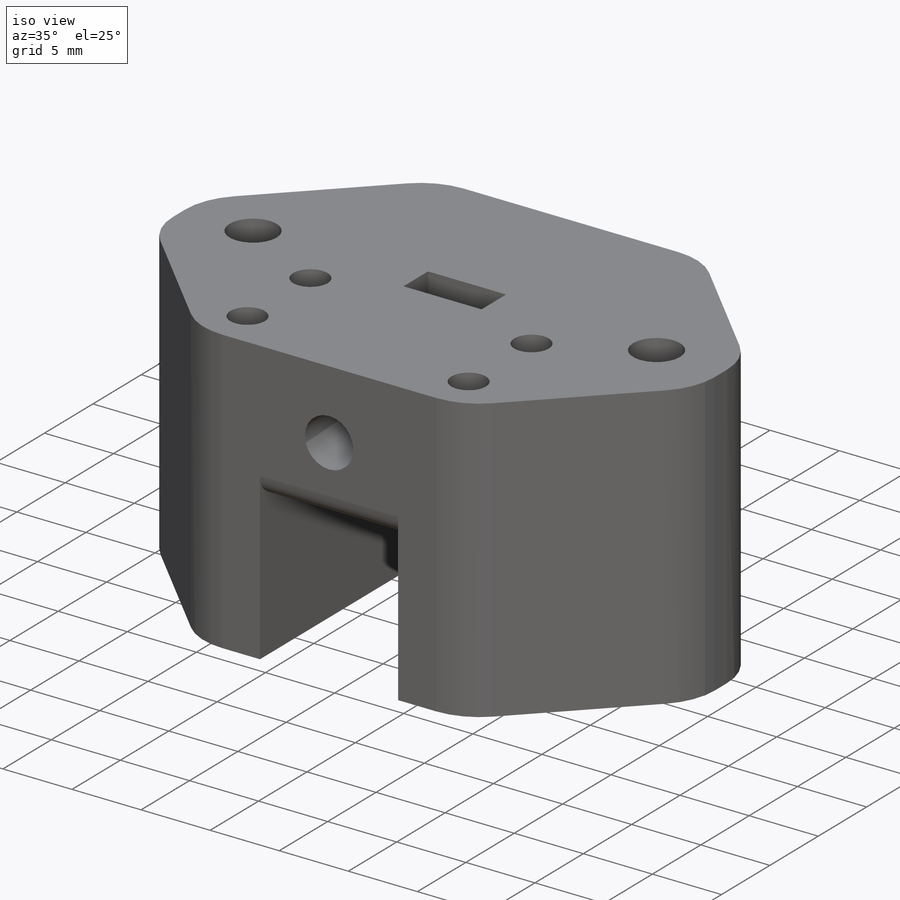
[diagram: iso view]
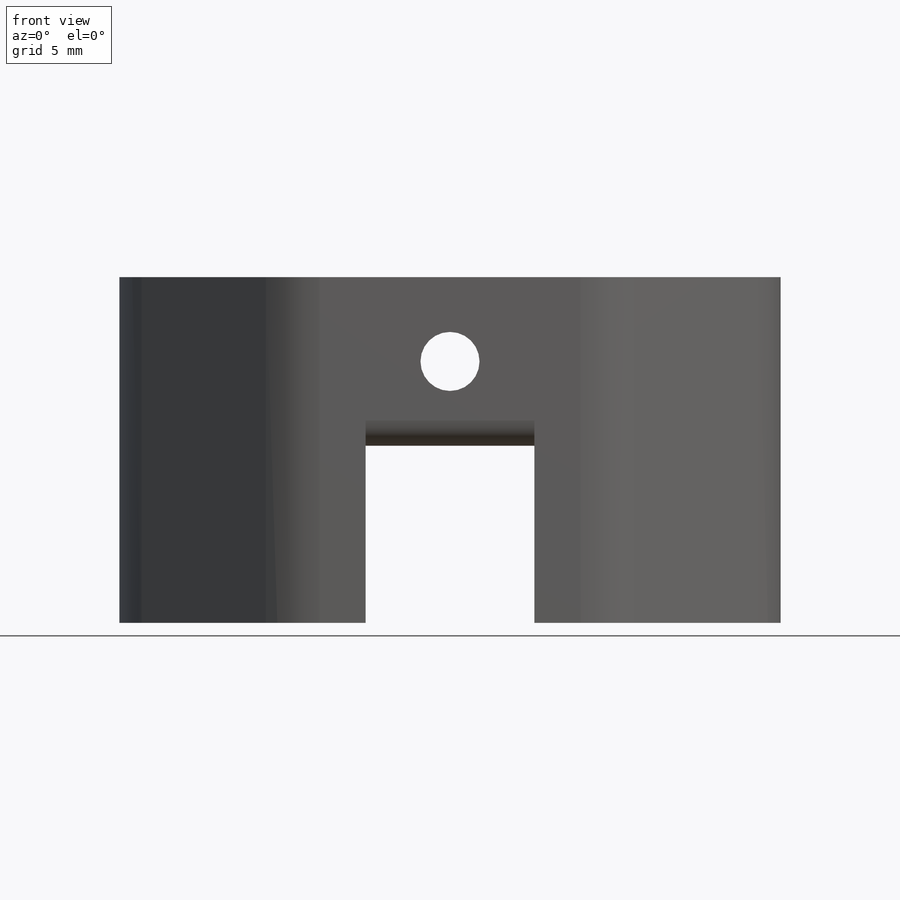
[diagram: front view]
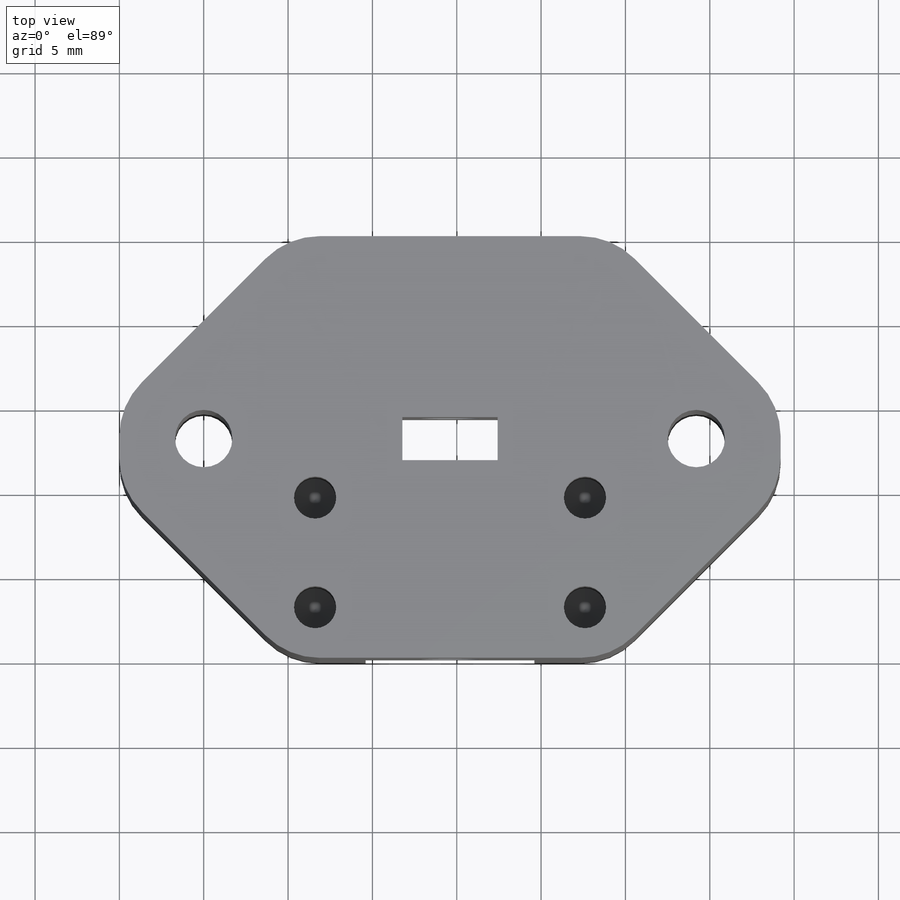
[diagram: top view]
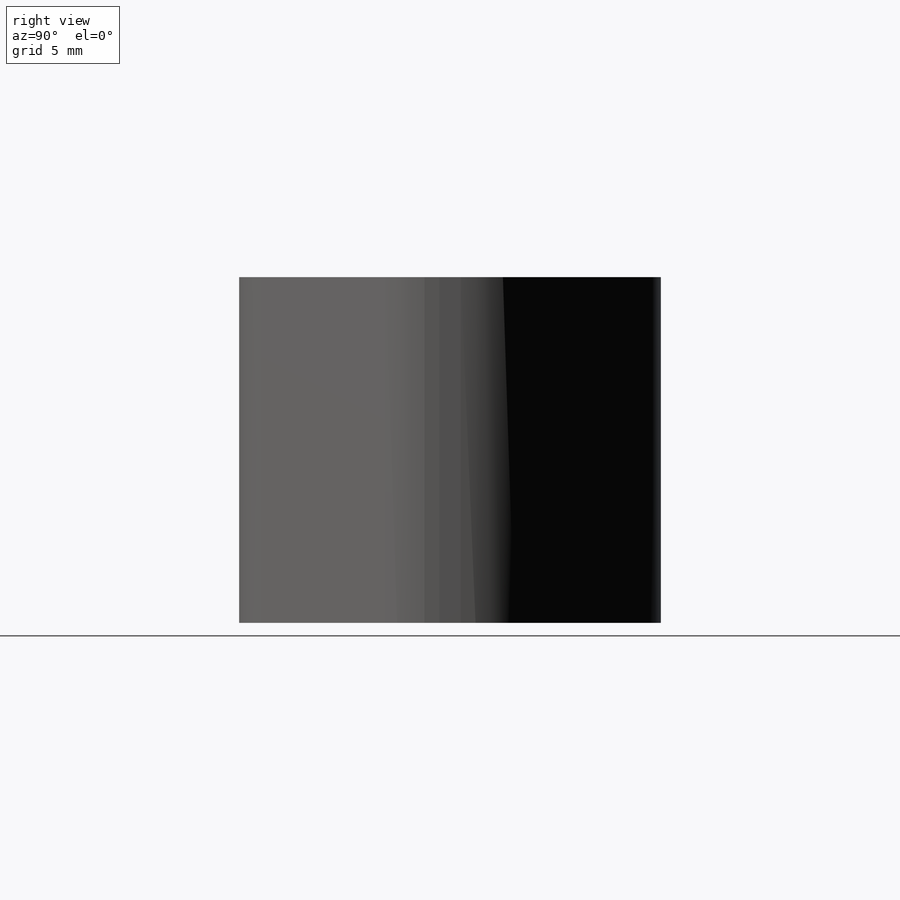
[diagram: right view]
SOLIDWORKS PART (.sldprt)
format: sldprt  version: not decoded by parser v0  size: 406,528 bytes
history: native  units: mm
features: sketch x11, hole x4, extrude x2, fillet x2, material x1, cut_extrude x1, chamfer x1 (+11 scaffold rows collapsed)
feature tree (33):
  scaffold x11  (default folders/planes/origin — collapsed)
  material  "ABS PC"
  sketch  "Sketch1"  dims[D1=39.2mm D2=25.0mm]
  extrude  "Boss-Extrude1"  Depth=10mm
  hole  "Ø3.5 (3.5) Diameter Hole1"  Diameter=3.5mm Depth=25mm
  sketch  "Sketch8"  dims[c1.D1=9.6mm c1.D2=3.0mm c2.D1=19.6mm c2.D2=5.0mm]
  sketch  "Sketch7"  dims[hole-wizard template sketch: 60 standard entries collapsed; hole parameters kept: c18.Thru Hole Depth=25.0mm]
  sketch  "Sketch9"  dims[D1=10.0mm D2=14.6mm]
  extrude  "Boss-Extrude2"  Depth=10.5mm
  sketch  "Sketch10"  dims[D1=5.65mm D2=2.55mm D3=16.775mm D4=10.73mm]
  cut_extrude  "Cut-Extrude4"  Depth=10mm
  hole  "Ø2.5 (2.5) Diameter Hole1"  Diameter=2.5mm Depth=7mm
  sketch  "Sketch12"  dims[D1=3.0mm D2=6.5mm D3=16.0mm D4=11.6mm]
  sketch  "Sketch11"  dims[hole-wizard template sketch: 50 standard entries collapsed; hole parameters above]
  hole  "Ø3.4 (3.4) Diameter Hole1"  Diameter=3.4mm Depth=20.500025mm
  sketch  "Sketch3"  dims[D1=5.0mm D2=5.0mm D3=7.0mm D4=12.0mm]
  sketch  "Sketch2"  dims[hole-wizard template sketch: 60 standard entries collapsed; hole parameters kept: c18.Thru Hole Depth=~20.500025mm]
  chamfer  "Chamfer1"  Distance=10mm Angle=45deg
  fillet  "Fillet5"  Radius=4.5mm
  fillet  "Fillet6"  Radius=1.5mm
  hole  "Ø3.4 (3.4) Diameter Hole2"  Diameter=3.4mm Depth=4mm
  sketch  "Sketch14"  dims[c1.D3=3.4mm c1.D1=0.5mm c1.D2=0.5mm c2.D1=12.0mm c2.D2=4.6mm c2.D3=4.6mm]
  sketch  "Sketch13"  dims[hole-wizard template sketch: 47 standard entries collapsed; hole parameters kept: c15.Hole Depth=4.0mm c15.D3=~14.816244mm c15.Drill Angle=118.0deg]
decode coverage: 21 of 21 modeling features carry decoded parameters
note: ~ marks probable driven/reference dimensions
summary: Diameter pulled from absorbed wizard sketch
note: suppression state not decoded; provenance and decode notes live in map.json
